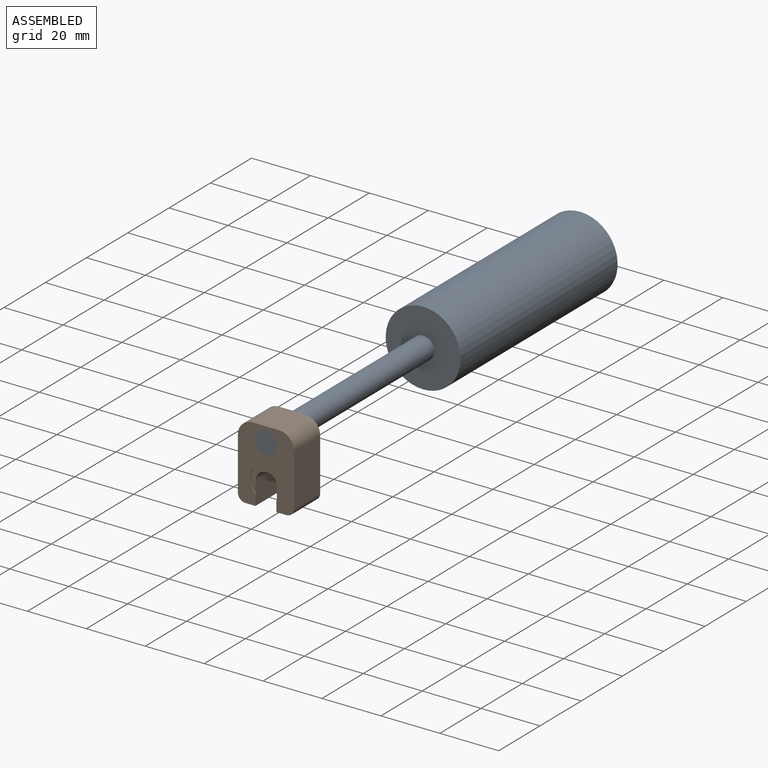
[diagram: assembled view]
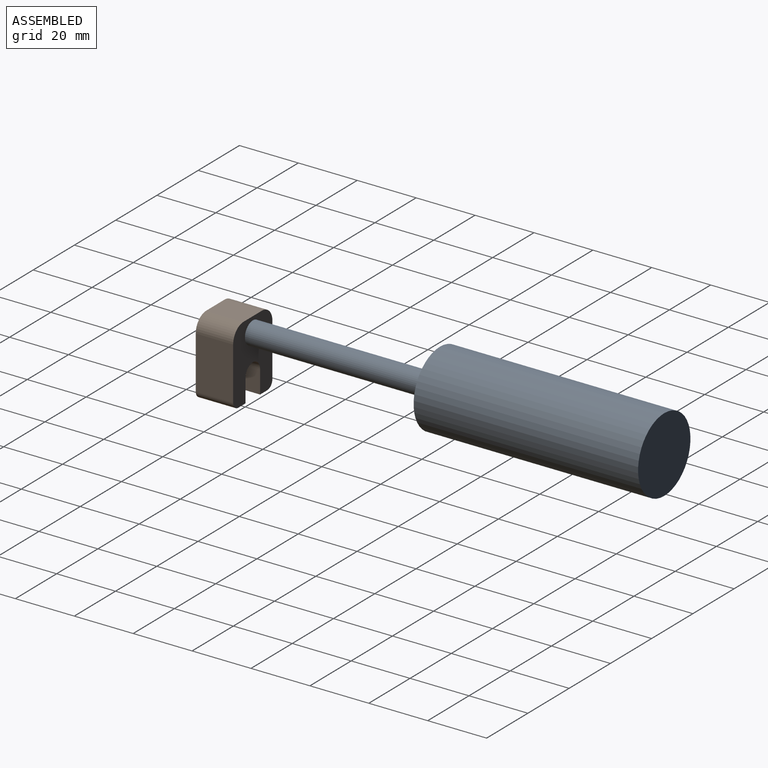
[diagram: assembled view, second angle]
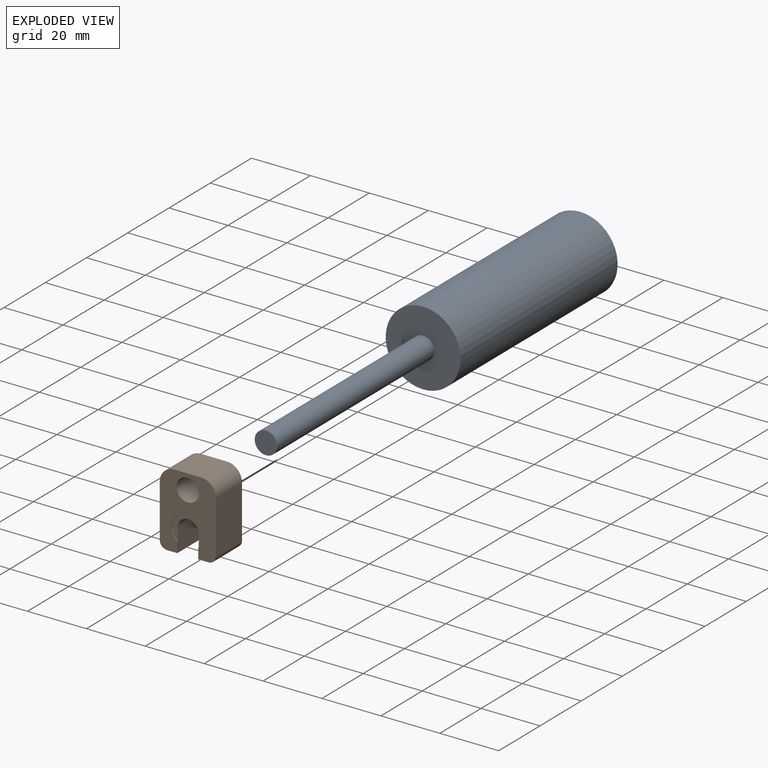
[diagram: exploded view]
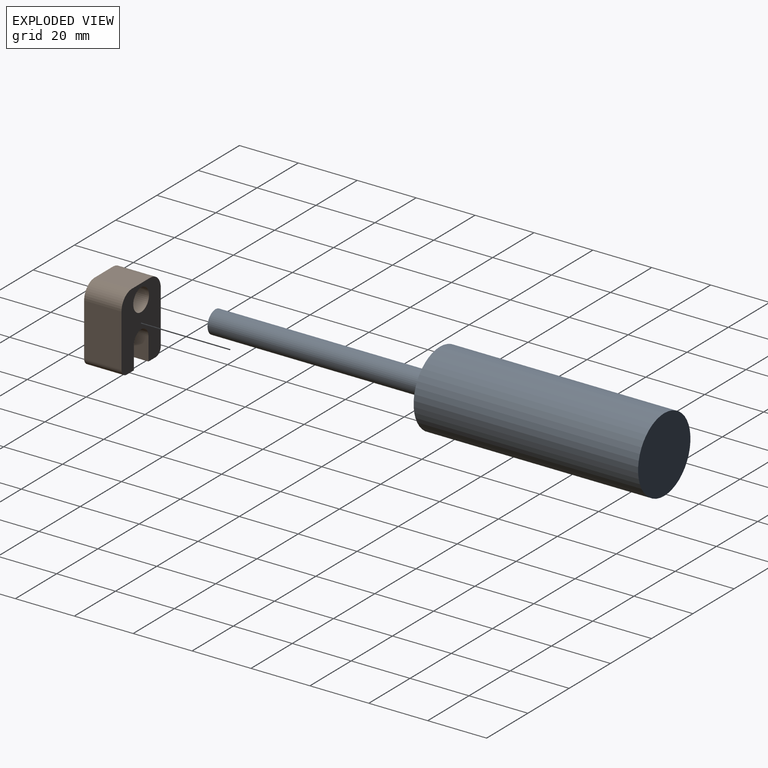
[diagram: exploded view, second angle]
ASSEMBLY  parts=2 mates=2
PART A: 5 faces, bbox 25.4x152.4x25.4 mm
  f0: cylinder r=12.7mm len=76.2mm, axis (0,1,0), area 6080.5mm2, adj f1,f2
  f1: plane 25.4x25.4mm, normal (0,-1,0), area 461.1mm2, adj f0,f3
  f2: plane 25.4x25.4mm, normal (0,1,0), area 506.7mm2, adj f0
  f3: cylinder r=3.81mm len=76.2mm, axis (0,1,0), area 1824.1mm2, adj f1,f4
  f4: plane 7.62x7.62mm, normal (0,-1,0), area 45.6mm2, adj f3
PART B: 17 faces, bbox 19.1x12.7x25.4 mm
  f0: cylinder r=3.56mm len=12.45mm, axis (0,-1,0), area 139mm2, adj f3,f8,f9,f14
  f1: plane 12.7x3.43mm, normal (0,0,-1), area 43.5mm2, adj f2,f3,f9,f16
  f2: plane 25.4x19.05mm, normal (0,-1,0), area 311.9mm2, adj f1,f4,f5,f6,f7,f8,f9,f10
  f3: plane 25.4x19.05mm, normal (0,1,0), area 349.8mm2, adj f0,f1,f4,f5,f6,f7,f8,f9
  f4: plane 12.7x8.89mm, normal (0,0,1), area 112.9mm2, adj f2,f3,f11,f12
  f5: plane 17.78x12.7mm, normal (-1,0,0), area 225.8mm2, adj f2,f3,f11,f15
  f6: plane 12.7x3.43mm, normal (0,0,-1), area 43.5mm2, adj f2,f3,f8,f15
  f7: plane 17.78x12.7mm, normal (1,0,0), area 225.8mm2, adj f2,f3,f12,f16
  f8: plane 12.7x7.7mm, normal (1,0,0), area 96.7mm2, adj f0,f2,f3,f6,f13,f14
  f9: plane 12.7x7.7mm, normal (-1,0,0), area 96.7mm2, adj f0,f1,f2,f3,f13,f14
  f10: cylinder r=3.81mm len=12.7mm, axis (0,1,0), area 304mm2, adj f2,f3
  f11: cylinder r=5.08mm len=12.7mm, axis (0,-1,0), area 101.3mm2, adj f2,f3,f4,f5
  f12: cylinder r=5.08mm len=12.7mm, axis (0,1,0), area 101.3mm2, adj f2,f3,f4,f7
  f13: cylinder r=5.46mm len=10.92mm, axis (0,-1,0), area 6.7mm2, adj f2,f8,f9,f14
  f14: plane 10.92x9.61mm, normal (0,-1,0), area 37.9mm2, adj f0,f8,f9,f13
  f15: cylinder r=2.54mm len=12.7mm, axis (0,1,0), area 50.7mm2, adj f2,f3,f5,f6
  f16: cylinder r=2.54mm len=12.7mm, axis (0,-1,0), area 50.7mm2, adj f1,f2,f3,f7
PLACE A t=(107.7,101.36,30.57)mm
PLACE B t=(33.95,-38.34,0.03)mm
MATE fastened B.f10 <-> A.f0  axis (0,-1,0) through (-21.33,-51.04,56.21)mm
MATE slider B.f10 <-> A.f0  axis (0,1,0) through (-21.33,-51.04,56.21)mm
